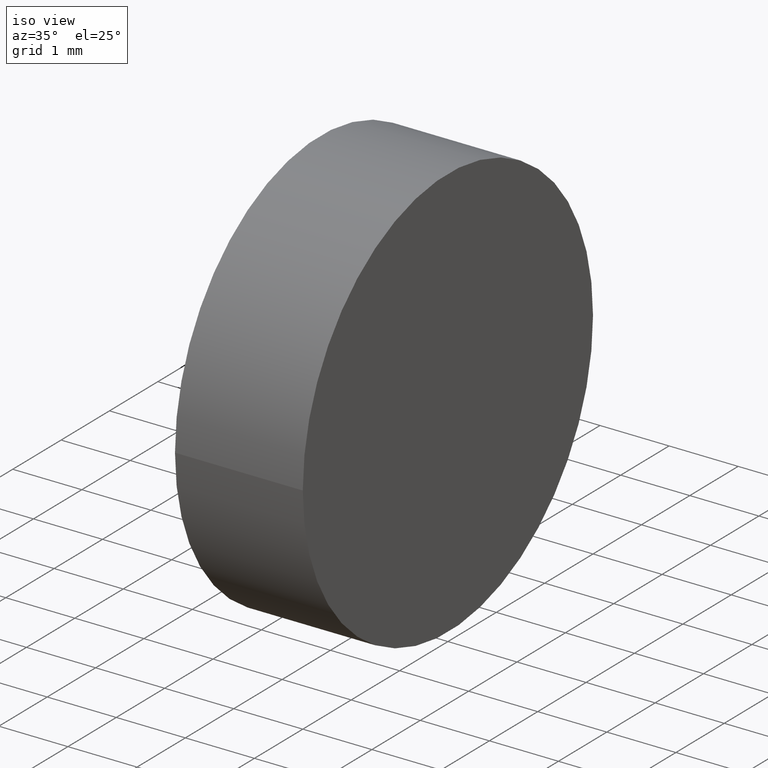
[diagram: clean part render]
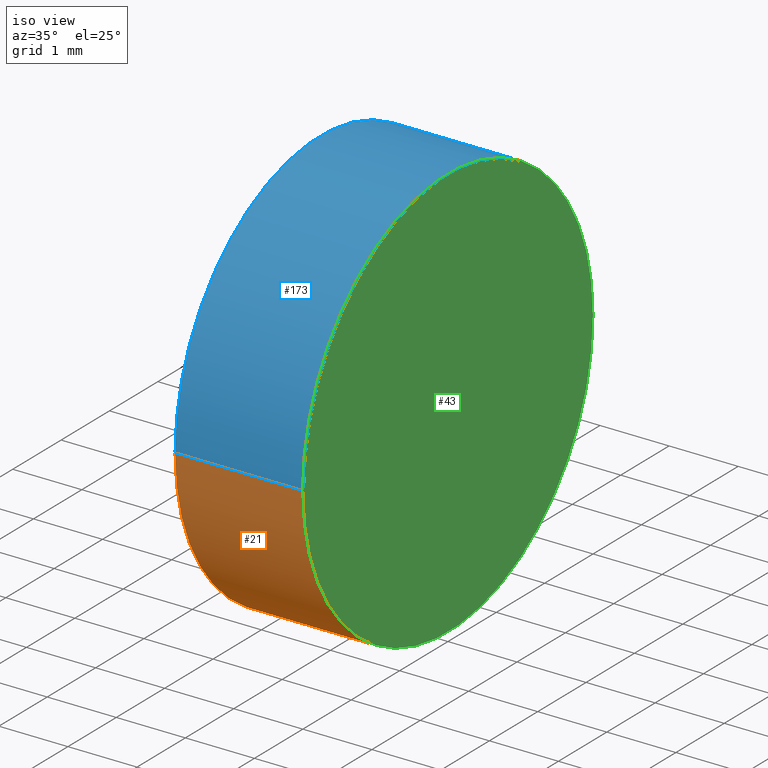
[diagram: same view with three faces highlighted in distinct colors, each labeled with its STEP entity id]
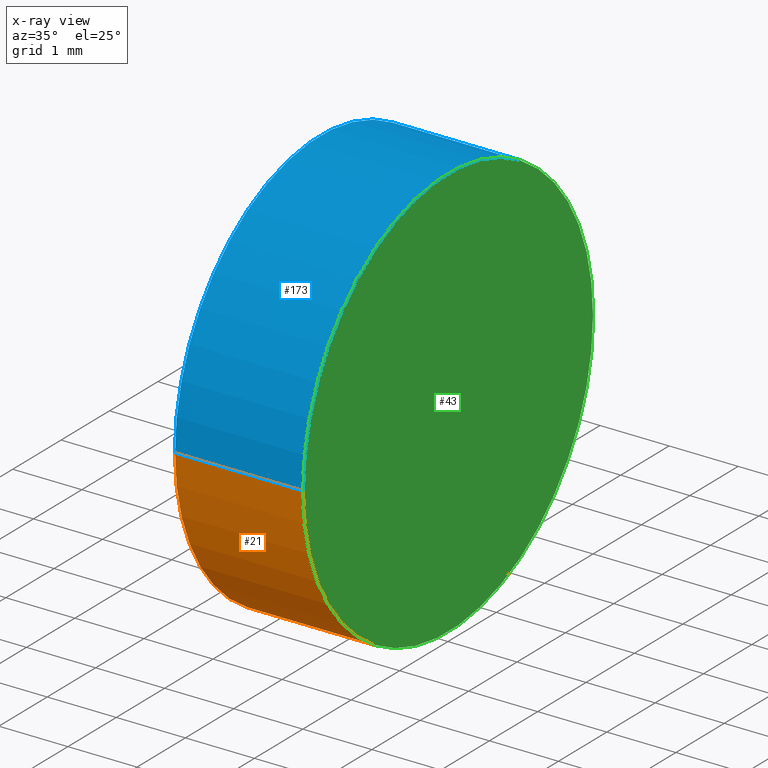
[diagram: x-ray of the same camera — body ghosted, the three highlighted faces saturated]
A machine part, iso view with three faces highlighted in distinct colors.
The next image is the same camera in x-ray (body ghosted, the three faces saturated) — at least one of them is partly hidden behind the body in this view.
Their STEP definitions:

[orange] entity #21 — the highlighted cylindrical surface (partial cylindrical patch) has radius 3 mm, axis along (1, 0, -0).
#1 = VERTEX_POINT ( 'NONE', #48 ) ;
#7 = CARTESIAN_POINT ( 'NONE',  ( -1.849999999999999645, -2.265596578422602607E-16, 0.000000000000000000 ) ) ;
#11 = DIRECTION ( 'NONE',  ( -1.445602896647338917E-16, 1.000000000000000000, 0.000000000000000000 ) ) ;
#14 = AXIS2_PLACEMENT_3D ( 'NONE', #7, #177, #11 ) ;
#17 = DIRECTION ( 'NONE',  ( 1.000000000000000000, 1.224646799147352961E-16, -0.000000000000000000 ) ) ;
#18 = ORIENTED_EDGE ( 'NONE', *, *, #137, .T. ) ;
#19 = CARTESIAN_POINT ( 'NONE',  ( -1.849999999999999201, -3.000000000000001776, 3.673940397442061840E-16 ) ) ;
#21 = ADVANCED_FACE ( 'NONE', ( #170 ), #93, .T. ) ;
#22 = AXIS2_PLACEMENT_3D ( 'NONE', #186, #17, #109 ) ;
#29 = DIRECTION ( 'NONE',  ( 1.000000000000000000, 1.224646799147352961E-16, -0.000000000000000000 ) ) ;
#47 = CARTESIAN_POINT ( 'NONE',  ( 0.000000000000000000, 0.000000000000000000, 0.000000000000000000 ) ) ;
#48 = CARTESIAN_POINT ( 'NONE',  ( 6.764028036053134381E-16, -3.000000000000000000, 3.673940397442059868E-16 ) ) ;
#50 = CARTESIAN_POINT ( 'NONE',  ( 3.673940397442059375E-16, -3.000000000000000000, 3.673940397442059868E-16 ) ) ;
#54 = CIRCLE ( 'NONE', #14, 3.000000000000000444 ) ;
#64 = ORIENTED_EDGE ( 'NONE', *, *, #118, .F. ) ;
#77 = VERTEX_POINT ( 'NONE', #155 ) ;
#80 = CARTESIAN_POINT ( 'NONE',  ( -3.673940397442059375E-16, 3.000000000000000000, 0.000000000000000000 ) ) ;
#89 = DIRECTION ( 'NONE',  ( 1.000000000000000000, 1.224646799147352961E-16, -0.000000000000000000 ) ) ;
#93 = CYLINDRICAL_SURFACE ( 'NONE', #176, 3.000000000000000000 ) ;
#96 = LINE ( 'NONE', #80, #136 ) ;
#99 = CIRCLE ( 'NONE', #22, 3.000000000000000000 ) ;
#101 = EDGE_CURVE ( 'NONE', #201, #1, #111, .T. ) ;
#109 = DIRECTION ( 'NONE',  ( -1.224646799147353207E-16, 1.000000000000000000, 0.000000000000000000 ) ) ;
#111 = LINE ( 'NONE', #50, #193 ) ;
#113 = VERTEX_POINT ( 'NONE', #171 ) ;
#118 = EDGE_CURVE ( 'NONE', #1, #77, #99, .T. ) ;
#125 = DIRECTION ( 'NONE',  ( 1.000000000000000000, 1.224646799147352961E-16, -0.000000000000000000 ) ) ;
#136 = VECTOR ( 'NONE', #89, 1000.000000000000000 ) ;
#137 = EDGE_CURVE ( 'NONE', #113, #77, #96, .T. ) ;
#142 = ORIENTED_EDGE ( 'NONE', *, *, #191, .T. ) ;
#152 = ORIENTED_EDGE ( 'NONE', *, *, #101, .F. ) ;
#155 = CARTESIAN_POINT ( 'NONE',  ( -5.838527588309833832E-17, 3.000000000000000000, 0.000000000000000000 ) ) ;
#156 = DIRECTION ( 'NONE',  ( -1.224646799147353207E-16, 1.000000000000000000, 0.000000000000000000 ) ) ;
#164 = EDGE_LOOP ( 'NONE', ( #152, #142, #18, #64 ) ) ;
#170 = FACE_OUTER_BOUND ( 'NONE', #164, .T. ) ;
#171 = CARTESIAN_POINT ( 'NONE',  ( -1.849999999999999645, 3.000000000000001332, 0.000000000000000000 ) ) ;
#176 = AXIS2_PLACEMENT_3D ( 'NONE', #47, #29, #156 ) ;
#177 = DIRECTION ( 'NONE',  ( 1.000000000000000000, 1.224646799147352961E-16, -0.000000000000000000 ) ) ;
#186 = CARTESIAN_POINT ( 'NONE',  ( 3.090087638611075992E-16, 3.784265935709856587E-32, 0.000000000000000000 ) ) ;
#191 = EDGE_CURVE ( 'NONE', #201, #113, #54, .T. ) ;
#193 = VECTOR ( 'NONE', #125, 1000.000000000000000 ) ;
#201 = VERTEX_POINT ( 'NONE', #19 ) ;

[blue] entity #173 — the highlighted cylindrical surface (partial cylindrical patch) has radius 3 mm, axis along (1, 0, -0).
#1 = VERTEX_POINT ( 'NONE', #48 ) ;
#13 = ORIENTED_EDGE ( 'NONE', *, *, #60, .F. ) ;
#19 = CARTESIAN_POINT ( 'NONE',  ( -1.849999999999999201, -3.000000000000001776, 3.673940397442061840E-16 ) ) ;
#25 = AXIS2_PLACEMENT_3D ( 'NONE', #37, #85, #58 ) ;
#27 = ORIENTED_EDGE ( 'NONE', *, *, #84, .T. ) ;
#37 = CARTESIAN_POINT ( 'NONE',  ( 0.000000000000000000, 0.000000000000000000, 0.000000000000000000 ) ) ;
#48 = CARTESIAN_POINT ( 'NONE',  ( 6.764028036053134381E-16, -3.000000000000000000, 3.673940397442059868E-16 ) ) ;
#49 = DIRECTION ( 'NONE',  ( -1.445602896647338917E-16, 1.000000000000000000, 0.000000000000000000 ) ) ;
#50 = CARTESIAN_POINT ( 'NONE',  ( 3.673940397442059375E-16, -3.000000000000000000, 3.673940397442059868E-16 ) ) ;
#58 = DIRECTION ( 'NONE',  ( -1.224646799147353207E-16, 1.000000000000000000, 0.000000000000000000 ) ) ;
#60 = EDGE_CURVE ( 'NONE', #77, #1, #185, .T. ) ;
#62 = CARTESIAN_POINT ( 'NONE',  ( -1.849999999999999645, -2.265596578422602607E-16, 0.000000000000000000 ) ) ;
#70 = AXIS2_PLACEMENT_3D ( 'NONE', #94, #158, #129 ) ;
#77 = VERTEX_POINT ( 'NONE', #155 ) ;
#80 = CARTESIAN_POINT ( 'NONE',  ( -3.673940397442059375E-16, 3.000000000000000000, 0.000000000000000000 ) ) ;
#84 = EDGE_CURVE ( 'NONE', #113, #201, #199, .T. ) ;
#85 = DIRECTION ( 'NONE',  ( 1.000000000000000000, 1.224646799147352961E-16, -0.000000000000000000 ) ) ;
#89 = DIRECTION ( 'NONE',  ( 1.000000000000000000, 1.224646799147352961E-16, -0.000000000000000000 ) ) ;
#94 = CARTESIAN_POINT ( 'NONE',  ( 3.090087638611075992E-16, 3.784265935709856587E-32, 0.000000000000000000 ) ) ;
#96 = LINE ( 'NONE', #80, #136 ) ;
#101 = EDGE_CURVE ( 'NONE', #201, #1, #111, .T. ) ;
#110 = EDGE_LOOP ( 'NONE', ( #27, #181, #13, #139 ) ) ;
#111 = LINE ( 'NONE', #50, #193 ) ;
#113 = VERTEX_POINT ( 'NONE', #171 ) ;
#114 = AXIS2_PLACEMENT_3D ( 'NONE', #62, #189, #49 ) ;
#125 = DIRECTION ( 'NONE',  ( 1.000000000000000000, 1.224646799147352961E-16, -0.000000000000000000 ) ) ;
#129 = DIRECTION ( 'NONE',  ( -1.224646799147353207E-16, 1.000000000000000000, 0.000000000000000000 ) ) ;
#136 = VECTOR ( 'NONE', #89, 1000.000000000000000 ) ;
#137 = EDGE_CURVE ( 'NONE', #113, #77, #96, .T. ) ;
#139 = ORIENTED_EDGE ( 'NONE', *, *, #137, .F. ) ;
#155 = CARTESIAN_POINT ( 'NONE',  ( -5.838527588309833832E-17, 3.000000000000000000, 0.000000000000000000 ) ) ;
#158 = DIRECTION ( 'NONE',  ( 1.000000000000000000, 1.224646799147352961E-16, -0.000000000000000000 ) ) ;
#171 = CARTESIAN_POINT ( 'NONE',  ( -1.849999999999999645, 3.000000000000001332, 0.000000000000000000 ) ) ;
#173 = ADVANCED_FACE ( 'NONE', ( #182 ), #196, .T. ) ;
#181 = ORIENTED_EDGE ( 'NONE', *, *, #101, .T. ) ;
#182 = FACE_OUTER_BOUND ( 'NONE', #110, .T. ) ;
#185 = CIRCLE ( 'NONE', #70, 3.000000000000000000 ) ;
#189 = DIRECTION ( 'NONE',  ( 1.000000000000000000, 1.224646799147352961E-16, -0.000000000000000000 ) ) ;
#193 = VECTOR ( 'NONE', #125, 1000.000000000000000 ) ;
#196 = CYLINDRICAL_SURFACE ( 'NONE', #25, 3.000000000000000000 ) ;
#199 = CIRCLE ( 'NONE', #114, 3.000000000000000444 ) ;
#201 = VERTEX_POINT ( 'NONE', #19 ) ;

[green] entity #43 — the highlighted planar face has unit normal (1, 0, -0).
#1 = VERTEX_POINT ( 'NONE', #48 ) ;
#3 = CARTESIAN_POINT ( 'NONE',  ( -2.128896578136521379E-16, 3.000000000000000000, 0.000000000000000000 ) ) ;
#17 = DIRECTION ( 'NONE',  ( 1.000000000000000000, 1.224646799147352961E-16, -0.000000000000000000 ) ) ;
#22 = AXIS2_PLACEMENT_3D ( 'NONE', #186, #17, #109 ) ;
#28 = DIRECTION ( 'NONE',  ( 1.000000000000000000, 1.224646799147352961E-16, -0.000000000000000000 ) ) ;
#30 = DIRECTION ( 'NONE',  ( -1.224646799147352961E-16, 1.000000000000000000, 0.000000000000000000 ) ) ;
#43 = ADVANCED_FACE ( 'NONE', ( #65 ), #168, .T. ) ;
#48 = CARTESIAN_POINT ( 'NONE',  ( 6.764028036053134381E-16, -3.000000000000000000, 3.673940397442059868E-16 ) ) ;
#60 = EDGE_CURVE ( 'NONE', #77, #1, #185, .T. ) ;
#63 = EDGE_LOOP ( 'NONE', ( #141, #67 ) ) ;
#65 = FACE_OUTER_BOUND ( 'NONE', #63, .T. ) ;
#67 = ORIENTED_EDGE ( 'NONE', *, *, #118, .T. ) ;
#70 = AXIS2_PLACEMENT_3D ( 'NONE', #94, #158, #129 ) ;
#77 = VERTEX_POINT ( 'NONE', #155 ) ;
#94 = CARTESIAN_POINT ( 'NONE',  ( 3.090087638611075992E-16, 3.784265935709856587E-32, 0.000000000000000000 ) ) ;
#99 = CIRCLE ( 'NONE', #22, 3.000000000000000000 ) ;
#109 = DIRECTION ( 'NONE',  ( -1.224646799147353207E-16, 1.000000000000000000, 0.000000000000000000 ) ) ;
#118 = EDGE_CURVE ( 'NONE', #1, #77, #99, .T. ) ;
#129 = DIRECTION ( 'NONE',  ( -1.224646799147353207E-16, 1.000000000000000000, 0.000000000000000000 ) ) ;
#141 = ORIENTED_EDGE ( 'NONE', *, *, #60, .T. ) ;
#155 = CARTESIAN_POINT ( 'NONE',  ( -5.838527588309833832E-17, 3.000000000000000000, 0.000000000000000000 ) ) ;
#157 = AXIS2_PLACEMENT_3D ( 'NONE', #3, #28, #30 ) ;
#158 = DIRECTION ( 'NONE',  ( 1.000000000000000000, 1.224646799147352961E-16, -0.000000000000000000 ) ) ;
#168 = PLANE ( 'NONE',  #157 ) ;
#185 = CIRCLE ( 'NONE', #70, 3.000000000000000000 ) ;
#186 = CARTESIAN_POINT ( 'NONE',  ( 3.090087638611075992E-16, 3.784265935709856587E-32, 0.000000000000000000 ) ) ;